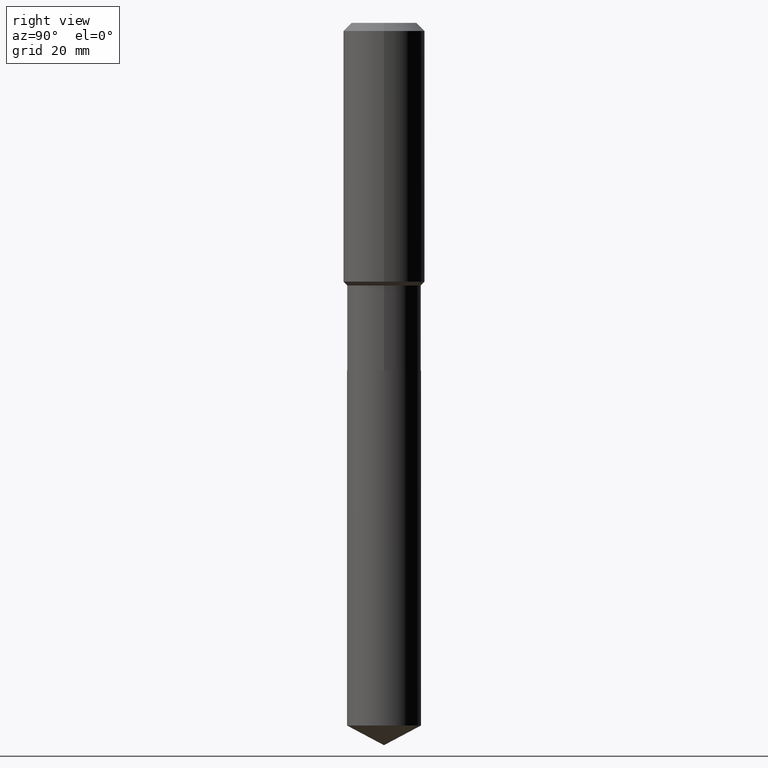
[diagram: clean part render]
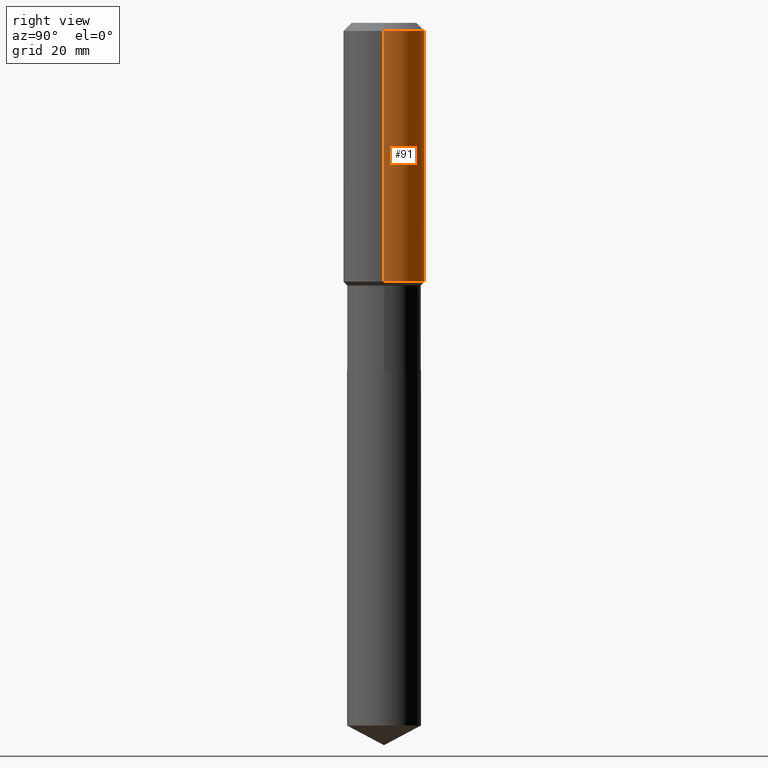
[diagram: same view with one face highlighted and labeled with its STEP entity id]
A machine part, right view. The second image highlights one B-rep face of the part: STEP entity #91.
In plain terms, the highlighted cylindrical surface (partial cylindrical patch) has radius 7.0002 mm, axis along (-0, 0, 1).
Its self-contained STEP definition (entity closure, byte-faithful):
#4 = EDGE_CURVE ( 'NONE', #83, #251, #306, .T. ) ;
#18 = VERTEX_POINT ( 'NONE', #377 ) ;
#28 = CARTESIAN_POINT ( 'NONE',  ( -0.2756000000000001227, 1.958255779754836984E-15, -1.355658510874252567E-29 ) ) ;
#31 = AXIS2_PLACEMENT_3D ( 'NONE', #266, #265, #71 ) ;
#63 = CARTESIAN_POINT ( 'NONE',  ( -0.2756000000000000116, -1.191968173029778724E-15, -0.05512000000000035621 ) ) ;
#71 = DIRECTION ( 'NONE',  ( 1.000000000000000000, -6.982962677686267499E-15, 0.000000000000000000 ) ) ;
#77 = CARTESIAN_POINT ( 'NONE',  ( 0.000000000000000000, 0.000000000000000000, 0.000000000000000000 ) ) ;
#83 = VERTEX_POINT ( 'NONE', #124 ) ;
#91 = ADVANCED_FACE ( 'NONE', ( #386 ), #268, .T. ) ;
#113 = CARTESIAN_POINT ( 'NONE',  ( 0.2756000000000001227, -1.924504513970336137E-15, 1.343874319409360548E-29 ) ) ;
#124 = CARTESIAN_POINT ( 'NONE',  ( 0.2756000000000000116, -2.116954965367370658E-15, -0.05512000000000035621 ) ) ;
#182 = EDGE_LOOP ( 'NONE', ( #223, #189, #321, #365 ) ) ;
#189 = ORIENTED_EDGE ( 'NONE', *, *, #445, .T. ) ;
#223 = ORIENTED_EDGE ( 'NONE', *, *, #245, .T. ) ;
#224 = LINE ( 'NONE', #113, #232 ) ;
#232 = VECTOR ( 'NONE', #260, 39.37007874015748143 ) ;
#235 = DIRECTION ( 'NONE',  ( -2.445468806185136597E-29, 3.491481338843145583E-15, 1.000000000000000000 ) ) ;
#243 = VECTOR ( 'NONE', #336, 39.37007874015748143 ) ;
#245 = EDGE_CURVE ( 'NONE', #434, #18, #253, .T. ) ;
#251 = VERTEX_POINT ( 'NONE', #63 ) ;
#253 = CIRCLE ( 'NONE', #31, 0.2756000000000002337 ) ;
#260 = DIRECTION ( 'NONE',  ( -2.445468806185136877E-29, 3.491481338843145188E-15, 1.000000000000000000 ) ) ;
#265 = DIRECTION ( 'NONE',  ( -2.445468806185136597E-29, 3.491481338843145583E-15, 1.000000000000000000 ) ) ;
#266 = CARTESIAN_POINT ( 'NONE',  ( 4.278103129540276898E-29, -6.107997454172196500E-15, -1.749399999999999400 ) ) ;
#268 = CYLINDRICAL_SURFACE ( 'NONE', #446, 0.2756000000000001227 ) ;
#306 = CIRCLE ( 'NONE', #367, 0.2756000000000000116 ) ;
#321 = ORIENTED_EDGE ( 'NONE', *, *, #4, .F. ) ;
#336 = DIRECTION ( 'NONE',  ( -2.445468806185136877E-29, 3.491481338843145188E-15, 1.000000000000000000 ) ) ;
#344 = DIRECTION ( 'NONE',  ( 1.000000000000000000, -6.982962677686265922E-15, 0.000000000000000000 ) ) ;
#365 = ORIENTED_EDGE ( 'NONE', *, *, #417, .F. ) ;
#367 = AXIS2_PLACEMENT_3D ( 'NONE', #450, #453, #344 ) ;
#375 = LINE ( 'NONE', #28, #243 ) ;
#377 = CARTESIAN_POINT ( 'NONE',  ( -0.2756000000000002337, -4.149741674417359122E-15, -1.749399999999999400 ) ) ;
#383 = DIRECTION ( 'NONE',  ( 1.000000000000000000, -6.982962677686267499E-15, 4.876176775795935793E-29 ) ) ;
#386 = FACE_OUTER_BOUND ( 'NONE', #182, .T. ) ;
#408 = CARTESIAN_POINT ( 'NONE',  ( 0.2756000000000002337, -8.032501968142533032E-15, -1.749399999999999400 ) ) ;
#417 = EDGE_CURVE ( 'NONE', #434, #83, #224, .T. ) ;
#434 = VERTEX_POINT ( 'NONE', #408 ) ;
#445 = EDGE_CURVE ( 'NONE', #18, #251, #375, .T. ) ;
#446 = AXIS2_PLACEMENT_3D ( 'NONE', #77, #235, #383 ) ;
#450 = CARTESIAN_POINT ( 'NONE',  ( 1.347942405969256063E-30, -1.924504513970354330E-16, -0.05512000000000035621 ) ) ;
#453 = DIRECTION ( 'NONE',  ( -2.445468806185136597E-29, 3.491481338843145583E-15, 1.000000000000000000 ) ) ;